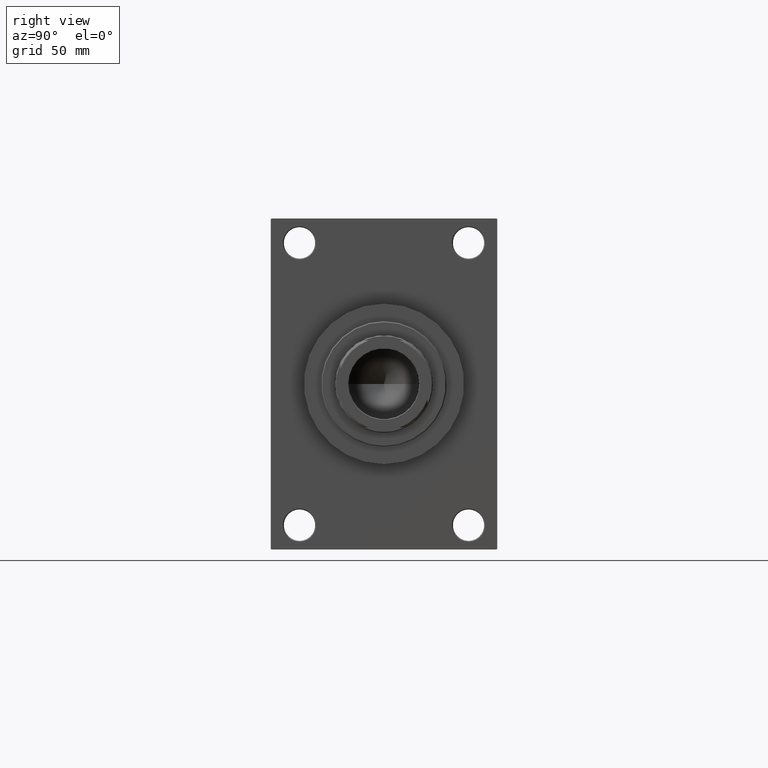
[diagram: clean part render]
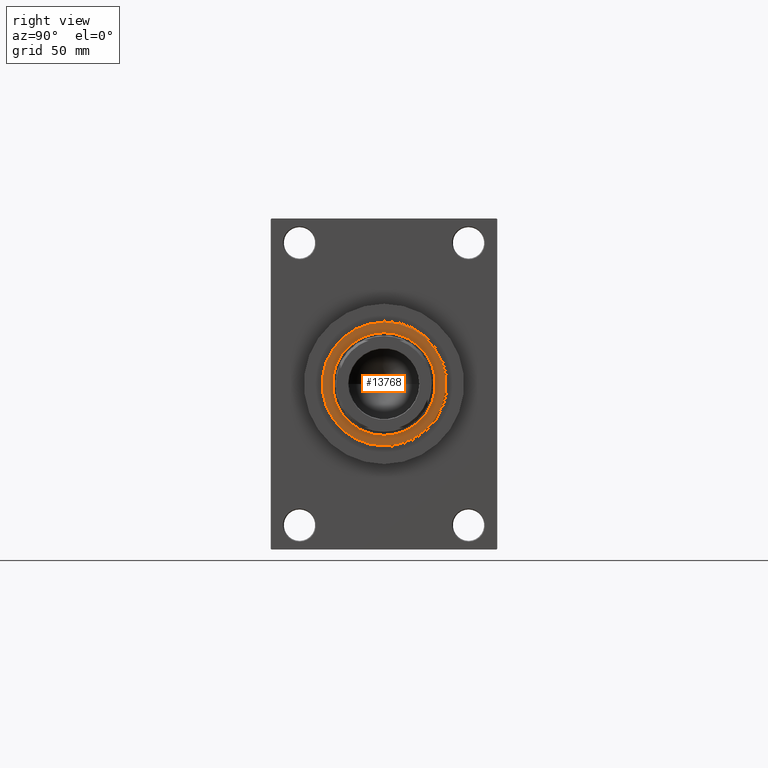
[diagram: same view with one face highlighted and labeled with its STEP entity id]
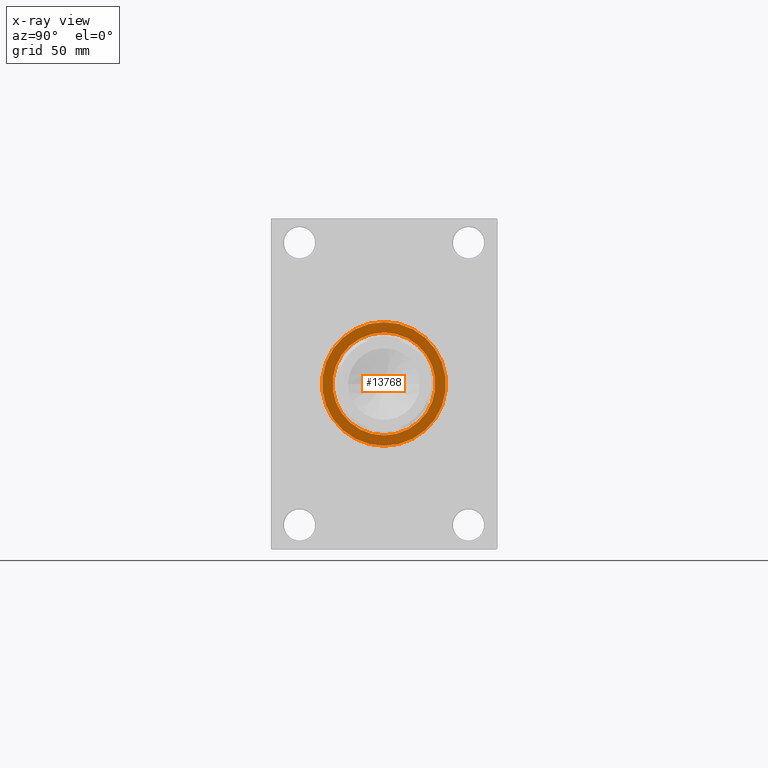
[diagram: x-ray of the same camera — body ghosted, the highlighted face saturated]
A machine part, right view. The second image highlights one B-rep face of the part: STEP entity #13768.
The next image is the same camera in x-ray: the body ghosted, the highlighted face saturated — about 0% of this face is hidden behind the body in this view.
In plain terms, the highlighted planar face has unit normal (1, -0, -0).
Its self-contained STEP definition (entity closure, byte-faithful):
#1555 = EDGE_CURVE ( 'NONE', #35303, #30776, #21058, .T. ) ;
#4448 = AXIS2_PLACEMENT_3D ( 'NONE', #41425, #30340, #29622 ) ;
#4575 = AXIS2_PLACEMENT_3D ( 'NONE', #42979, #36219, #32119 ) ;
#6417 = DIRECTION ( 'NONE',  ( 0.000000000000000000, 0.000000000000000000, 1.000000000000000000 ) ) ;
#6594 = ORIENTED_EDGE ( 'NONE', *, *, #35683, .T. ) ;
#6762 = FACE_BOUND ( 'NONE', #9676, .T. ) ;
#8332 = ORIENTED_EDGE ( 'NONE', *, *, #1555, .F. ) ;
#8576 = EDGE_LOOP ( 'NONE', ( #31652, #6594 ) ) ;
#9676 = EDGE_LOOP ( 'NONE', ( #31175, #8332 ) ) ;
#9750 = CARTESIAN_POINT ( 'NONE',  ( 35.50000000000001421, 4.378112306951788646E-15, 53.26000000000000512 ) ) ;
#10361 = DIRECTION ( 'NONE',  ( 1.000000000000000000, 0.000000000000000000, 0.000000000000000000 ) ) ;
#11714 = EDGE_CURVE ( 'NONE', #44038, #20422, #42202, .T. ) ;
#12866 = CIRCLE ( 'NONE', #17590, 35.50000000000001421 ) ;
#12934 = CARTESIAN_POINT ( 'NONE',  ( 0.000000000000000000, 0.000000000000000000, 53.26000000000000512 ) ) ;
#13768 = ADVANCED_FACE ( 'NONE', ( #6762, #13978 ), #43450, .T. ) ;
#13978 = FACE_OUTER_BOUND ( 'NONE', #8576, .T. ) ;
#15507 = DIRECTION ( 'NONE',  ( 0.000000000000000000, 0.000000000000000000, 1.000000000000000000 ) ) ;
#17032 = DIRECTION ( 'NONE',  ( 1.000000000000000000, 0.000000000000000000, 0.000000000000000000 ) ) ;
#17590 = AXIS2_PLACEMENT_3D ( 'NONE', #24831, #29212, #10361 ) ;
#18760 = AXIS2_PLACEMENT_3D ( 'NONE', #12934, #6417, #17032 ) ;
#20422 = VERTEX_POINT ( 'NONE', #9750 ) ;
#20790 = CARTESIAN_POINT ( 'NONE',  ( -29.50000000000000355, 3.612708057484692393E-15, 53.26000000000000512 ) ) ;
#21058 = CIRCLE ( 'NONE', #18760, 29.50000000000000355 ) ;
#24831 = CARTESIAN_POINT ( 'NONE',  ( 0.000000000000000000, 0.000000000000000000, 53.26000000000000512 ) ) ;
#25888 = CARTESIAN_POINT ( 'NONE',  ( 29.50000000000000355, 0.000000000000000000, 53.26000000000000512 ) ) ;
#26364 = CARTESIAN_POINT ( 'NONE',  ( 0.000000000000000000, 0.000000000000000000, 53.26000000000000512 ) ) ;
#26955 = CARTESIAN_POINT ( 'NONE',  ( -35.50000000000001421, 0.000000000000000000, 53.26000000000000512 ) ) ;
#27751 = EDGE_CURVE ( 'NONE', #30776, #35303, #35855, .T. ) ;
#29212 = DIRECTION ( 'NONE',  ( 0.000000000000000000, 0.000000000000000000, 1.000000000000000000 ) ) ;
#29622 = DIRECTION ( 'NONE',  ( 1.000000000000000000, 0.000000000000000000, 0.000000000000000000 ) ) ;
#30340 = DIRECTION ( 'NONE',  ( 0.000000000000000000, 0.000000000000000000, 1.000000000000000000 ) ) ;
#30776 = VERTEX_POINT ( 'NONE', #25888 ) ;
#31175 = ORIENTED_EDGE ( 'NONE', *, *, #27751, .F. ) ;
#31652 = ORIENTED_EDGE ( 'NONE', *, *, #11714, .T. ) ;
#32119 = DIRECTION ( 'NONE',  ( 1.000000000000000000, 0.000000000000000000, -0.000000000000000000 ) ) ;
#33393 = DIRECTION ( 'NONE',  ( 1.000000000000000000, 0.000000000000000000, 0.000000000000000000 ) ) ;
#35303 = VERTEX_POINT ( 'NONE', #20790 ) ;
#35683 = EDGE_CURVE ( 'NONE', #20422, #44038, #12866, .T. ) ;
#35855 = CIRCLE ( 'NONE', #37412, 29.50000000000000355 ) ;
#36219 = DIRECTION ( 'NONE',  ( 0.000000000000000000, 0.000000000000000000, 1.000000000000000000 ) ) ;
#37412 = AXIS2_PLACEMENT_3D ( 'NONE', #26364, #15507, #33393 ) ;
#41425 = CARTESIAN_POINT ( 'NONE',  ( 0.000000000000000000, 0.000000000000000000, 53.26000000000000512 ) ) ;
#42202 = CIRCLE ( 'NONE', #4448, 35.50000000000001421 ) ;
#42979 = CARTESIAN_POINT ( 'NONE',  ( 0.000000000000000000, 0.000000000000000000, 53.26000000000000512 ) ) ;
#43450 = PLANE ( 'NONE',  #4575 ) ;
#44038 = VERTEX_POINT ( 'NONE', #26955 ) ;